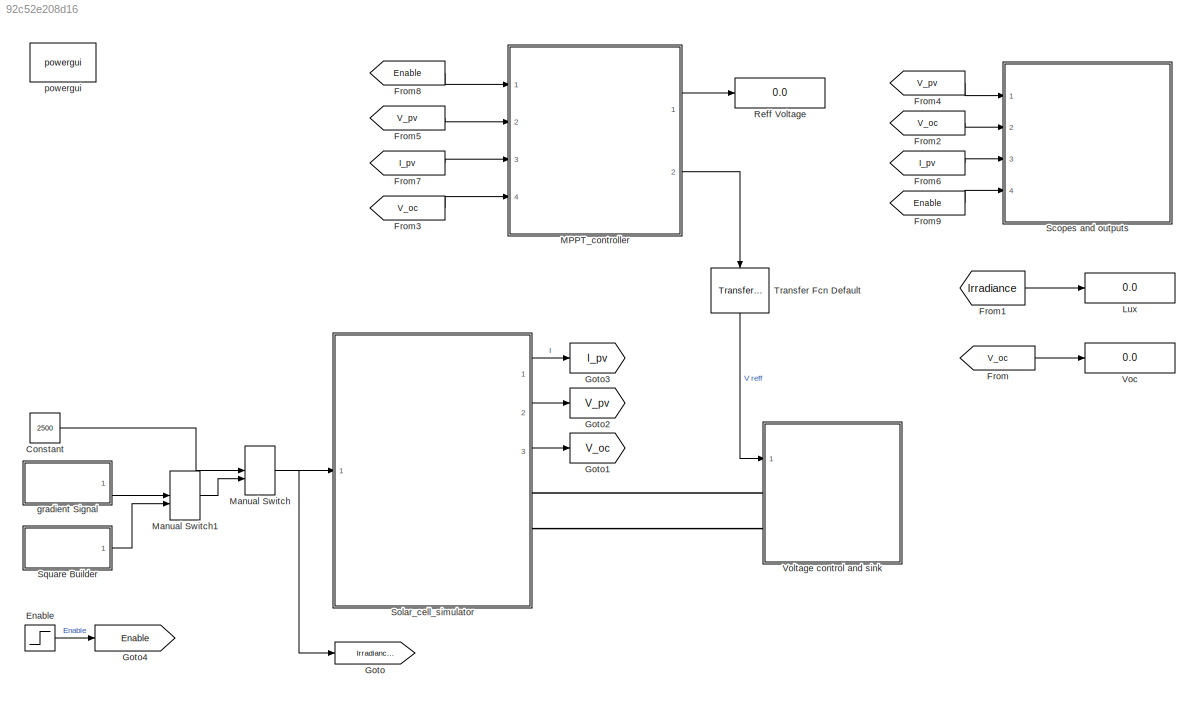
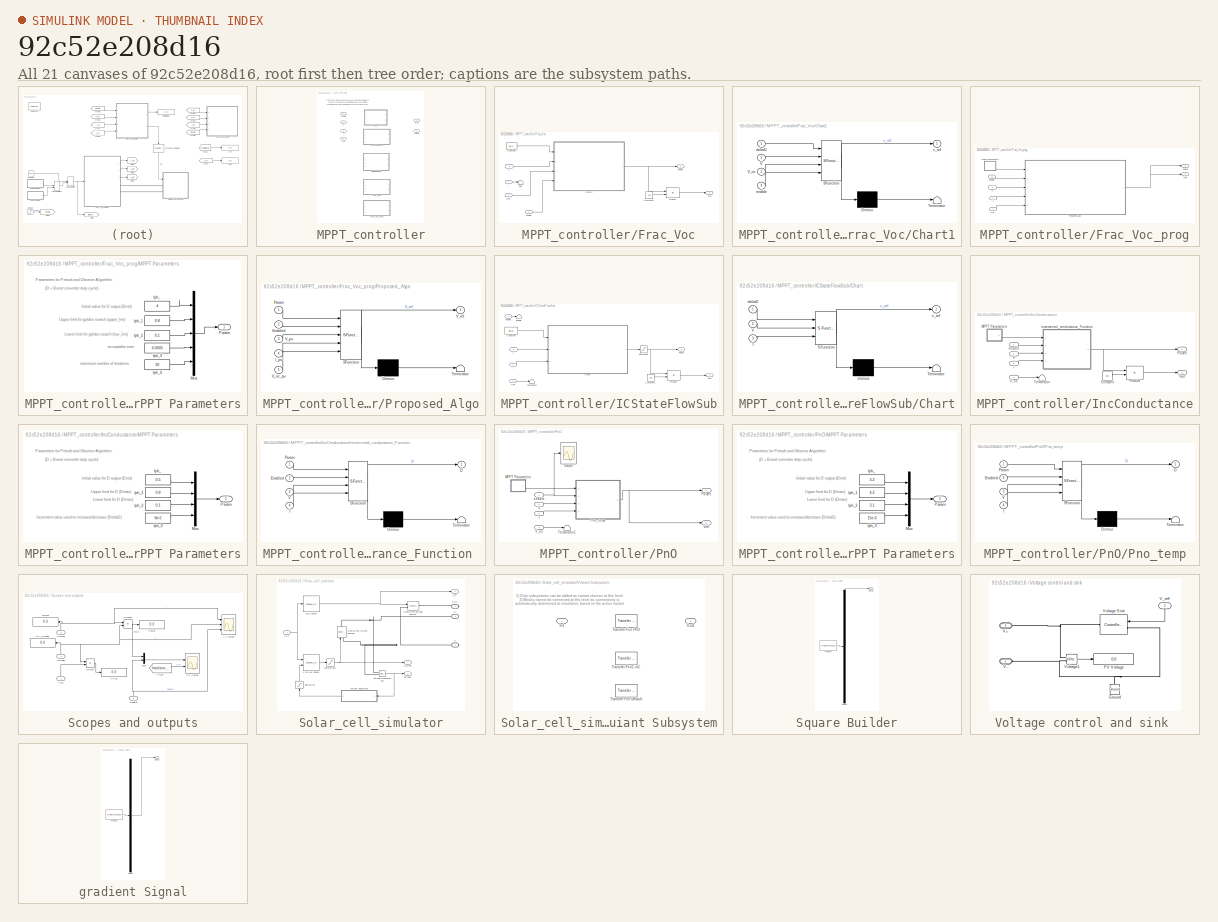
[diagram: thumbnail index - all 21 canvases of the model, root first then tree order]
MODEL slx_92c52e208d16
KIND model
BLOCK [Constant] Constant
  Value = 2500
BLOCK [Step] Enable
  SampleTime = 0
  Time = 0.1
BLOCK [From] From
  GotoTag = V_oc
BLOCK [From] From1
  GotoTag = Irradiance
BLOCK [From] From2
  GotoTag = V_oc
BLOCK [From] From3
  GotoTag = V_oc
BLOCK [From] From4
  GotoTag = V_pv
BLOCK [From] From5
  GotoTag = V_pv
BLOCK [From] From6
  GotoTag = I_pv
BLOCK [From] From7
  GotoTag = I_pv
BLOCK [From] From8
  GotoTag = Enable
BLOCK [From] From9
  GotoTag = Enable
BLOCK [Goto] Goto
  GotoTag = Irradiance_lux
  TagVisibility = global
BLOCK [Goto] Goto1
  GotoTag = V_oc
BLOCK [Goto] Goto2
  GotoTag = V_pv
BLOCK [Goto] Goto3
  GotoTag = I_pv
BLOCK [Goto] Goto4
  GotoTag = Enable
BLOCK [Display] Lux
  Decimation = 1
  Ports = [1]
BLOCK [SubSystem] MPPT_controller
  Ports = [4, 2]
  RequestExecContextInheritance = off
  Variant = on
BLOCK [SubSystem] MPPT_controller/Frac_Voc
  Ports = [4, 2]
  RequestExecContextInheritance = off
  VariantControl = MPPT_Frac_Voc
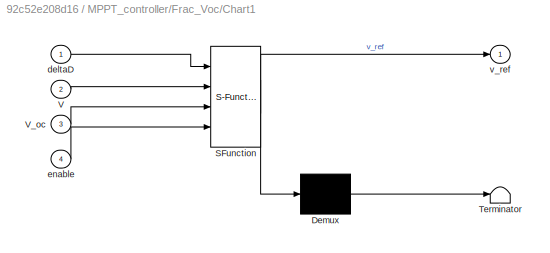
BLOCK [SubSystem] MPPT_controller/Frac_Voc/Chart1
  ErrorFcn = Stateflow.Translate.translate
  PermitHierarchicalResolution = ExplicitOnly
  Ports = [4, 1]
  RequestExecContextInheritance = off
  SFBlockType = Chart
  TreatAsAtomicUnit = on
BLOCK [Demux] MPPT_controller/Frac_Voc/Chart1/ Demux 
  Outputs = 1
  Ports = [1, 1]
BLOCK [S-Function] MPPT_controller/Frac_Voc/Chart1/ SFunction 
  EnableBusSupport = on
  FunctionName = sf_sfun
  PortCounts = [4 2]
  Ports = [4, 2]
  Tag = Stateflow S-Function G24i_v_source 5
BLOCK [Terminator] MPPT_controller/Frac_Voc/Chart1/ Terminator 
BLOCK [Inport] MPPT_controller/Frac_Voc/Chart1/V
  IconDisplay = Port number
  Port = 2
BLOCK [Inport] MPPT_controller/Frac_Voc/Chart1/V_oc
  IconDisplay = Port number
  Port = 3
BLOCK [Inport] MPPT_controller/Frac_Voc/Chart1/deltaD
  IconDisplay = Port number
BLOCK [Inport] MPPT_controller/Frac_Voc/Chart1/enable
  IconDisplay = Port number
  Port = 4
BLOCK [Outport] MPPT_controller/Frac_Voc/Chart1/v_ref
  IconDisplay = Port number
BLOCK [Constant] MPPT_controller/Frac_Voc/Constant
  Value = 8e-4
BLOCK [Constant] MPPT_controller/Frac_Voc/Constant1
  Value = 100
BLOCK [Inport] MPPT_controller/Frac_Voc/I
  IconDisplay = Port number
  Port = 2
BLOCK [Product] MPPT_controller/Frac_Voc/Product
  InputSameDT = off
  OutDataTypeStr = Inherit: Inherit via internal rule
  Ports = [2, 1]
  SaturateOnIntegerOverflow = off
BLOCK [Outport] MPPT_controller/Frac_Voc/Pulses
  IconDisplay = Port number
BLOCK [Inport] MPPT_controller/Frac_Voc/V
  IconDisplay = Port number
  Port = 3
BLOCK [Inport] MPPT_controller/Frac_Voc/V_oc
  IconDisplay = Port number
  Port = 4
BLOCK [Outport] MPPT_controller/Frac_Voc/Vref
  IconDisplay = Port number
  Port = 2
BLOCK [Inport] MPPT_controller/Frac_Voc/enable
  IconDisplay = Port number
BLOCK [Terminator] MPPT_controller/Frac_Voc/sink
BLOCK [SubSystem] MPPT_controller/Frac_Voc_prog
  Ports = [4, 2]
  RequestExecContextInheritance = off
  VariantControl = MPPT_Frac_Voc_prog
BLOCK [Inport] MPPT_controller/Frac_Voc_prog/I
  IconDisplay = Port number
  Port = 2
BLOCK [SubSystem] MPPT_controller/Frac_Voc_prog/MPPT Parameters
  Ports = [0, 1]
  RequestExecContextInheritance = off
BLOCK [Constant] MPPT_controller/Frac_Voc_prog/MPPT Parameters/Iph_
  Value = 4
BLOCK [Constant] MPPT_controller/Frac_Voc_prog/MPPT Parameters/Iph_1
  Value = 0.8
BLOCK [Constant] MPPT_controller/Frac_Voc_prog/MPPT Parameters/Iph_2
  Value = 0.1
BLOCK [Constant] MPPT_controller/Frac_Voc_prog/MPPT Parameters/Iph_3
  Value = 0.0005
BLOCK [Constant] MPPT_controller/Frac_Voc_prog/MPPT Parameters/Iph_4
  Value = 30
BLOCK [Mux] MPPT_controller/Frac_Voc_prog/MPPT Parameters/Mux
  DisplayOption = bar
  Inputs = 5
  Ports = [5, 1]
BLOCK [Outport] MPPT_controller/Frac_Voc_prog/MPPT Parameters/Param
  IconDisplay = Port number
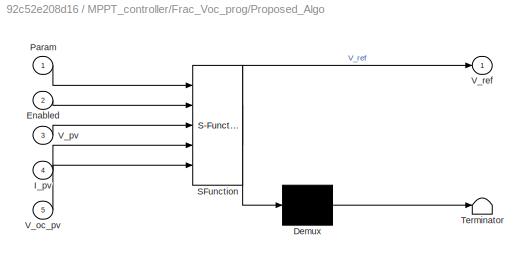
BLOCK [SubSystem] MPPT_controller/Frac_Voc_prog/Proposed_Algo
  ErrorFcn = Stateflow.Translate.translate
  PermitHierarchicalResolution = ExplicitOnly
  Ports = [5, 1]
  RequestExecContextInheritance = off
  SFBlockType = MATLAB Function
  TreatAsAtomicUnit = on
BLOCK [Demux] MPPT_controller/Frac_Voc_prog/Proposed_Algo/ Demux 
  Outputs = 1
  Ports = [1, 1]
BLOCK [S-Function] MPPT_controller/Frac_Voc_prog/Proposed_Algo/ SFunction 
  EnableBusSupport = on
  FunctionName = sf_sfun
  PortCounts = [5 2]
  Ports = [5, 2]
  Tag = Stateflow S-Function G24i_v_source 2
BLOCK [Terminator] MPPT_controller/Frac_Voc_prog/Proposed_Algo/ Terminator 
BLOCK [Inport] MPPT_controller/Frac_Voc_prog/Proposed_Algo/Enabled
  IconDisplay = Port number
  Port = 2
BLOCK [Inport] MPPT_controller/Frac_Voc_prog/Proposed_Algo/I_pv
  IconDisplay = Port number
  Port = 4
BLOCK [Inport] MPPT_controller/Frac_Voc_prog/Proposed_Algo/Param
  IconDisplay = Port number
BLOCK [Inport] MPPT_controller/Frac_Voc_prog/Proposed_Algo/V_oc_pv
  IconDisplay = Port number
  Port = 5
BLOCK [Inport] MPPT_controller/Frac_Voc_prog/Proposed_Algo/V_pv
  IconDisplay = Port number
  Port = 3
BLOCK [Outport] MPPT_controller/Frac_Voc_prog/Proposed_Algo/V_ref
  IconDisplay = Port number
BLOCK [Outport] MPPT_controller/Frac_Voc_prog/Pulses
  IconDisplay = Port number
BLOCK [Inport] MPPT_controller/Frac_Voc_prog/V
  IconDisplay = Port number
  Port = 3
BLOCK [Inport] MPPT_controller/Frac_Voc_prog/V_oc
  IconDisplay = Port number
  Port = 4
BLOCK [Outport] MPPT_controller/Frac_Voc_prog/Vref
  IconDisplay = Port number
  Port = 2
BLOCK [Inport] MPPT_controller/Frac_Voc_prog/enable
  IconDisplay = Port number
BLOCK [Inport] MPPT_controller/I
  IconDisplay = Port number
  Port = 3
BLOCK [SubSystem] MPPT_controller/ICStateFlowSub
  Ports = [4, 2]
  RequestExecContextInheritance = off
  VariantControl = MPPT_IC_SF
BLOCK [SubSystem] MPPT_controller/ICStateFlowSub/Chart
  ErrorFcn = Stateflow.Translate.translate
  PermitHierarchicalResolution = ExplicitOnly
  Ports = [3, 1]
  RequestExecContextInheritance = off
  SFBlockType = Chart
  TreatAsAtomicUnit = on
BLOCK [Demux] MPPT_controller/ICStateFlowSub/Chart/ Demux 
  Outputs = 1
  Ports = [1, 1]
BLOCK [S-Function] MPPT_controller/ICStateFlowSub/Chart/ SFunction 
  EnableBusSupport = on
  FunctionName = sf_sfun
  PortCounts = [3 2]
  Ports = [3, 2]
  Tag = Stateflow S-Function G24i_v_source 3
BLOCK [Terminator] MPPT_controller/ICStateFlowSub/Chart/ Terminator 
BLOCK [Inport] MPPT_controller/ICStateFlowSub/Chart/I
  IconDisplay = Port number
  Port = 3
BLOCK [Inport] MPPT_controller/ICStateFlowSub/Chart/V
  IconDisplay = Port number
  Port = 2
BLOCK [Inport] MPPT_controller/ICStateFlowSub/Chart/deltaD
  IconDisplay = Port number
BLOCK [Outport] MPPT_controller/ICStateFlowSub/Chart/v_ref
  IconDisplay = Port number
BLOCK [Constant] MPPT_controller/ICStateFlowSub/Constant
  Value = 8e-5
BLOCK [Constant] MPPT_controller/ICStateFlowSub/Constant1
  Value = 100
BLOCK [Terminator] MPPT_controller/ICStateFlowSub/Enable 
BLOCK [Inport] MPPT_controller/ICStateFlowSub/I
  IconDisplay = Port number
  Port = 2
BLOCK [Product] MPPT_controller/ICStateFlowSub/Product
  InputSameDT = off
  OutDataTypeStr = Inherit: Inherit via internal rule
  Ports = [2, 1]
  SaturateOnIntegerOverflow = off
BLOCK [Outport] MPPT_controller/ICStateFlowSub/Pulses
  IconDisplay = Port number
BLOCK [Saturate] MPPT_controller/ICStateFlowSub/Saturation
  InputPortMap = u0
  LowerLimit = 0.1
  Ports = [1, 1]
  UpperLimit = .95
BLOCK [Terminator] MPPT_controller/ICStateFlowSub/Terminator
BLOCK [Inport] MPPT_controller/ICStateFlowSub/V
  IconDisplay = Port number
  Port = 3
BLOCK [Inport] MPPT_controller/ICStateFlowSub/V_oc
  IconDisplay = Port number
  Port = 4
BLOCK [Outport] MPPT_controller/ICStateFlowSub/Vref
  IconDisplay = Port number
  Port = 2
BLOCK [Inport] MPPT_controller/ICStateFlowSub/enable
  IconDisplay = Port number
BLOCK [SubSystem] MPPT_controller/IncConductance
  Ports = [4, 2]
  RequestExecContextInheritance = off
  VariantControl = MPPT_IC_logic
BLOCK [Constant] MPPT_controller/IncConductance/Constant
  Value = 100
BLOCK [Inport] MPPT_controller/IncConductance/I
  IconDisplay = Port number
  Port = 3
BLOCK [SubSystem] MPPT_controller/IncConductance/MPPT Parameters
  Ports = [0, 1]
  RequestExecContextInheritance = off
BLOCK [Constant] MPPT_controller/IncConductance/MPPT Parameters/Iph_
  Value = 0.5
BLOCK [Constant] MPPT_controller/IncConductance/MPPT Parameters/Iph_1
  Value = 0.8
BLOCK [Constant] MPPT_controller/IncConductance/MPPT Parameters/Iph_2
  Value = 0.1
BLOCK [Constant] MPPT_controller/IncConductance/MPPT Parameters/Iph_3
  Value = 8e-5
BLOCK [Mux] MPPT_controller/IncConductance/MPPT Parameters/Mux
  DisplayOption = bar
  Ports = [4, 1]
BLOCK [Outport] MPPT_controller/IncConductance/MPPT Parameters/Param
  IconDisplay = Port number
BLOCK [Product] MPPT_controller/IncConductance/Product
  InputSameDT = off
  OutDataTypeStr = Inherit: Inherit via internal rule
  Ports = [2, 1]
  SaturateOnIntegerOverflow = off
BLOCK [Outport] MPPT_controller/IncConductance/Pulses
  IconDisplay = Port number
BLOCK [Terminator] MPPT_controller/IncConductance/Terminator
BLOCK [Inport] MPPT_controller/IncConductance/V
  IconDisplay = Port number
  Port = 2
BLOCK [Inport] MPPT_controller/IncConductance/V_oc
  IconDisplay = Port number
  Port = 4
BLOCK [Outport] MPPT_controller/IncConductance/Vref
  IconDisplay = Port number
  Port = 2
BLOCK [Inport] MPPT_controller/IncConductance/enable
  IconDisplay = Port number
BLOCK [SubSystem] MPPT_controller/IncConductance/incremental_conductance_Function 
  ErrorFcn = Stateflow.Translate.translate
  PermitHierarchicalResolution = ExplicitOnly
  Ports = [4, 1]
  RequestExecContextInheritance = off
  SFBlockType = MATLAB Function
  TreatAsAtomicUnit = on
BLOCK [Demux] MPPT_controller/IncConductance/incremental_conductance_Function / Demux 
  Outputs = 1
  Ports = [1, 1]
BLOCK [S-Function] MPPT_controller/IncConductance/incremental_conductance_Function / SFunction 
  EnableBusSupport = on
  FunctionName = sf_sfun
  PortCounts = [4 2]
  Ports = [4, 2]
  Tag = Stateflow S-Function G24i_v_source 1
BLOCK [Terminator] MPPT_controller/IncConductance/incremental_conductance_Function / Terminator 
BLOCK [Outport] MPPT_controller/IncConductance/incremental_conductance_Function /D
  IconDisplay = Port number
BLOCK [Inport] MPPT_controller/IncConductance/incremental_conductance_Function /Enabled
  IconDisplay = Port number
  Port = 2
BLOCK [Inport] MPPT_controller/IncConductance/incremental_conductance_Function /I
  IconDisplay = Port number
  Port = 4
BLOCK [Inport] MPPT_controller/IncConductance/incremental_conductance_Function /Param
  IconDisplay = Port number
BLOCK [Inport] MPPT_controller/IncConductance/incremental_conductance_Function /V
  IconDisplay = Port number
  Port = 3
BLOCK [SubSystem] MPPT_controller/PnO
  Ports = [4, 2]
  RequestExecContextInheritance = off
  VariantControl = MPPT_PnO
BLOCK [Inport] MPPT_controller/PnO/I
  IconDisplay = Port number
  Port = 3
BLOCK [SubSystem] MPPT_controller/PnO/MPPT Parameters
  Ports = [0, 1]
  RequestExecContextInheritance = off
BLOCK [Constant] MPPT_controller/PnO/MPPT Parameters/Iph_
  Value = 3.2
BLOCK [Constant] MPPT_controller/PnO/MPPT Parameters/Iph_1
  Value = 4.2
BLOCK [Constant] MPPT_controller/PnO/MPPT Parameters/Iph_2
  Value = 3.1
BLOCK [Constant] MPPT_controller/PnO/MPPT Parameters/Iph_3
  Value = 15e-3
BLOCK [Mux] MPPT_controller/PnO/MPPT Parameters/Mux
  DisplayOption = bar
  Ports = [4, 1]
BLOCK [Outport] MPPT_controller/PnO/MPPT Parameters/Param
  IconDisplay = Port number
BLOCK [SubSystem] MPPT_controller/PnO/Pno_temp
  ErrorFcn = Stateflow.Translate.translate
  MinAlgLoopOccurrences = on
  PermitHierarchicalResolution = ExplicitOnly
  Ports = [4, 1]
  RequestExecContextInheritance = off
  SFBlockType = MATLAB Function
  TreatAsAtomicUnit = on
BLOCK [Demux] MPPT_controller/PnO/Pno_temp/ Demux 
  Outputs = 1
  Ports = [1, 1]
BLOCK [S-Function] MPPT_controller/PnO/Pno_temp/ SFunction 
  EnableBusSupport = on
  FunctionName = sf_sfun
  PortCounts = [4 2]
  Ports = [4, 2]
  Tag = Stateflow S-Function G24i_v_source 6
BLOCK [Terminator] MPPT_controller/PnO/Pno_temp/ Terminator 
BLOCK [Outport] MPPT_controller/PnO/Pno_temp/D
  IconDisplay = Port number
BLOCK [Inport] MPPT_controller/PnO/Pno_temp/Enabled
  IconDisplay = Port number
  Port = 2
BLOCK [Inport] MPPT_controller/PnO/Pno_temp/I
  IconDisplay = Port number
  Port = 4
BLOCK [Inport] MPPT_controller/PnO/Pno_temp/Param
  IconDisplay = Port number
BLOCK [Inport] MPPT_controller/PnO/Pno_temp/V
  IconDisplay = Port number
  Port = 3
BLOCK [Outport] MPPT_controller/PnO/Pulses
  IconDisplay = Port number
BLOCK [Scope] MPPT_controller/PnO/Scope
  DataFormat = StructureWithTime
  Floating = off
  LimitDataPoints = off
  NumInputPorts = 1
  Ports = [1]
  SampleTime = 0
  SaveName = ScopeData4
  ShowLegends = off
  TimeRange = 1
  YMax = 0.6
  YMin = -4.16334e-17
  ZoomMode = yonly
BLOCK [Terminator] MPPT_controller/PnO/Terminator1
BLOCK [Inport] MPPT_controller/PnO/V
  IconDisplay = Port number
  Port = 2
BLOCK [Inport] MPPT_controller/PnO/V_oc
  IconDisplay = Port number
  Port = 4
BLOCK [Outport] MPPT_controller/PnO/Vref
  IconDisplay = Port number
  Port = 2
BLOCK [Inport] MPPT_controller/PnO/enable
  IconDisplay = Port number
BLOCK [Outport] MPPT_controller/Pulses
  IconDisplay = Port number
  Port = 2
BLOCK [Inport] MPPT_controller/V
  IconDisplay = Port number
  Port = 2
BLOCK [Inport] MPPT_controller/V_oc
  IconDisplay = Port number
  Port = 4
BLOCK [Outport] MPPT_controller/Vref
  IconDisplay = Port number
BLOCK [Inport] MPPT_controller/enable
  IconDisplay = Port number
BLOCK [ManualSwitch] Manual Switch
  CurrentSetting = 0
BLOCK [ManualSwitch] Manual Switch1
  CurrentSetting = 0
BLOCK [Display] Reff Voltage
  Decimation = 1
  Ports = [1]
BLOCK [SubSystem] Scopes and outputs
  Ports = [4]
  RequestExecContextInheritance = off
BLOCK [Inport] Scopes and outputs/Current
  IconDisplay = Port number
  Port = 3
BLOCK [Product] Scopes and outputs/Divide
  InputSameDT = off
  Inputs = */
  OutDataTypeStr = Inherit: Inherit via internal rule
  Ports = [2, 1]
  RndMeth = Floor
  SaturateOnIntegerOverflow = off
BLOCK [Inport] Scopes and outputs/Enable
  IconDisplay = Port number
  Port = 4
BLOCK [From] Scopes and outputs/From
  GotoTag = Irradiance_lux
  TagVisibility = global
BLOCK [Scope] Scopes and outputs/I-V curves
  DataFormat = StructureWithTime
  Floating = off
  LimitDataPoints = off
  NumInputPorts = 3
  Ports = [3]
  SampleTime = 0
  SaveToWorkspace = on
  ShowLegends = on
  TimeRange = 0.09
  YMax = 0.8~3.5125~1.05
  YMin = 0.45~3.4875~0.95
  ZoomMode = yonly
BLOCK [Mux] Scopes and outputs/Mux
  DisplayOption = bar
  Inputs = 2
  Ports = [2, 1]
BLOCK [Scope] Scopes and outputs/PV Power
  DataFormat = StructureWithTime
  Floating = off
  LimitDataPoints = off
  NumInputPorts = 2
  Ports = [2]
  SampleTime = 0
  SaveName = ScopeData2
  ShowLegends = on
  TimeRange = 0.5
  YMax = 7~2000
  YMin = 0~800
  ZoomMode = xonly
BLOCK [Display] Scopes and outputs/PV_Voltage
  Decimation = 1
  Ports = [1]
BLOCK [Display] Scopes and outputs/Power
  Decimation = 1
  Ports = [1]
BLOCK [Product] Scopes and outputs/Product
  InputSameDT = off
  OutDataTypeStr = Inherit: Inherit via internal rule
  Ports = [2, 1]
  SaturateOnIntegerOverflow = off
BLOCK [Display] Scopes and outputs/V//Voc
  Decimation = 1
  Ports = [1]
BLOCK [Inport] Scopes and outputs/V_oc
  IconDisplay = Port number
  Port = 2
BLOCK [Inport] Scopes and outputs/Voltage
  IconDisplay = Port number
BLOCK [Display] Scopes and outputs/current
  Decimation = 1
  Ports = [1]
BLOCK [SubSystem] Solar_cell_simulator
  Ports = [1, 3, 0, 0, 0, 0, 3]
  RequestExecContextInheritance = off
BLOCK [Lookup_n-D] Solar_cell_simulator/0 -5k Lux lookup
  BreakpointsForDimension1 = Irradiance
  BreakpointsForDimension1Max = [5000]
  BreakpointsForDimension1Min = [0]
  BreakpointsForDimension2 = ArrayVoltage
  BreakpointsForDimension2Max = [6]
  BreakpointsForDimension2Min = [0]
  DiagnosticForOutOfRangeInput = Warning
  Ports = [2, 1]
  RndMeth = Simplest
  Table = ArrayCurrent
BLOCK [Reference] Solar_cell_simulator/Controlled Current Source2  REF=powerlib/Electrical
Sources/Controlled Current Source
  Amplitude = 0
  Frequency = 0
  Initialize = on
  Measurements = None
  Phase = 0
  Ports = [1, 0, 0, 0, 0, 1, 1]
  SourceBlock = powerlib/Electrical\nSources/Controlled Current Source
  SourceType = Controlled Current Source
  Source_Type = DC
BLOCK [Reference] Solar_cell_simulator/Controlled Voltage Source1  REF=powerlib/Electrical
Sources/Controlled Voltage Source
  Amplitude = 0
  Frequency = 0
  Initialize = on
  Measurements = Voltage
  Phase = 0
  Ports = [1, 0, 0, 0, 0, 1, 1]
  SourceBlock = powerlib/Electrical\nSources/Controlled Voltage Source
  SourceType = Controlled Voltage Source
  Source_Type = AC
BLOCK [Outport] Solar_cell_simulator/Current
  IconDisplay = Port number
BLOCK [Inport] Solar_cell_simulator/LUX
  IconDisplay = Port number
BLOCK [Saturate] Solar_cell_simulator/Saturation
  InputPortMap = u0
  LowerLimit = 0
  Ports = [1, 1]
  UpperLimit = 6
  ZeroCross = off
BLOCK [Saturate] Solar_cell_simulator/Saturation1
  InputPortMap = u0
  LowerLimit = -1
  Ports = [1, 1]
  UpperLimit = 6
BLOCK [PMIOPort] Solar_cell_simulator/V+
  Port = 1
  Side = Right
  Tag = PMCPort
BLOCK [PMIOPort] Solar_cell_simulator/V-
  Port = 2
  Side = Right
  Tag = PMCPort
BLOCK [PMIOPort] Solar_cell_simulator/V_OC
  Port = 3
  Side = Right
  Tag = PMCPort
BLOCK [Outport] Solar_cell_simulator/V_oc 
  IconDisplay = Port number
  Port = 3
BLOCK [Lookup_n-D] Solar_cell_simulator/V_oc lookup
  BreakpointsForDimension1 = Irradiance
  NumberOfTableDimensions = 1
  Ports = [1, 1]
  RndMeth = Simplest
  Table = Array_Voc
BLOCK [SubSystem] Solar_cell_simulator/Variant Subsystem
  Ports = [1, 1]
  RequestExecContextInheritance = off
  Variant = on
BLOCK [Inport] Solar_cell_simulator/Variant Subsystem/In1
  IconDisplay = Port number
BLOCK [Outport] Solar_cell_simulator/Variant Subsystem/Out1
  IconDisplay = Port number
BLOCK [Reference] Solar_cell_simulator/Variant Subsystem/Transfer Fcn Default  REF=simulink_extras/Additional
Linear/Transfer Fcn
(with initial states)
  D = [.001  1]
  N = [1]
  Ports = [1, 1]
  SourceBlock = simulink_extras/Additional\nLinear/Transfer Fcn\n(with initial states)
  SourceType = Transfer Function with Initial States
  VariantControl = (default)
  X0 = 0
BLOCK [Reference] Solar_cell_simulator/Variant Subsystem/Transfer Fcn PnO  REF=simulink_extras/Additional
Linear/Transfer Fcn
(with initial states)
  D = [.0001  1]
  N = [1]
  Ports = [1, 1]
  SourceBlock = simulink_extras/Additional\nLinear/Transfer Fcn\n(with initial states)
  SourceType = Transfer Function with Initial States
  VariantControl = MPPT_PnO
  X0 = 0
BLOCK [Reference] Solar_cell_simulator/Variant Subsystem/Transfer Fcn1 inC  REF=simulink_extras/Additional
Linear/Transfer Fcn
(with initial states)
  D = [.001  1]
  N = [1]
  Ports = [1, 1]
  SourceBlock = simulink_extras/Additional\nLinear/Transfer Fcn\n(with initial states)
  SourceType = Transfer Function with Initial States
  VariantControl = MPPT_IC_logic
  X0 = 0
BLOCK [Outport] Solar_cell_simulator/Voltage
  IconDisplay = Port number
  Port = 2
BLOCK [Reference] Solar_cell_simulator/Voltage Measurement  REF=powerlib/Measurements/Voltage Measurement
  OutputType = Complex
  PSBequivalent = 0
  PhasorSimulation = off
  Ports = [0, 1, 0, 0, 0, 2]
  SourceBlock = powerlib/Measurements/Voltage Measurement
  SourceType = Voltage Measurement
BLOCK [SubSystem] Square Builder
  ClipboardFcn = sigbuilder_block('clipboard');
  CloseFcn = sigbuilder_block('close');
  ContinueFcn = sigbuilder_block('continue');
  CopyFcn = sigbuilder_block('copy');
  DeleteFcn = sigbuilder_block('delete');
  LoadFcn = sigbuilder_block('load');
  MaskHideContents = on
  ModelCloseFcn = sigbuilder_block('modelClose');
  NameChangeFcn = sigbuilder_block('namechange');
  OpenFcn = sigbuilder_block('open',[0 29.7931 1588.97 810.621 ]);
  PauseFcn = sigbuilder_block('pause');
  Ports = [0, 1]
  PreSaveFcn = sigbuilder_block('preSave');
  RequestExecContextInheritance = off
  StartFcn = sigbuilder_block('start');
  StopFcn = sigbuilder_block('stop');
  Tag = STV Subsys
BLOCK [Demux] Square Builder/Demux
  Outputs = 1
  Ports = [1, 1]
  Tag = STV Demux
BLOCK [FromWorkspace] Square Builder/FromWs
  SampleTime = 0
  Tag = STV FromWs
  VariableName = tuvar
  ZeroCross = on
BLOCK [Outport] Square Builder/Signal 1
  IconDisplay = Port number
  Tag = STV Outport
BLOCK [Reference] Transfer Fcn Default  REF=simulink_extras/Additional
Linear/Transfer Fcn
(with initial states)
  D = [.00001  1]
  N = [1]
  Ports = [1, 1]
  SourceBlock = simulink_extras/Additional\nLinear/Transfer Fcn\n(with initial states)
  SourceType = Transfer Function with Initial States
  VariantControl = (default)
  X0 = 0
BLOCK [Display] Voc
  Decimation = 1
  Ports = [1]
BLOCK [SubSystem] Voltage control and sink 
  Ports = [1, 0, 0, 0, 0, 2]
  RequestExecContextInheritance = off
BLOCK [Reference] Voltage control and sink /Ground  REF=powerlib/Elements/Ground
  LConnTagsString = a
  Ports = [0, 0, 0, 0, 0, 1]
  SourceBlock = powerlib/Elements/Ground
  SourceType = Ground
BLOCK [Display] Voltage control and sink /PV Voltage
  Decimation = 1
  Ports = [1]
BLOCK [PMIOPort] Voltage control and sink /V+
  Port = 1
  Side = Left
BLOCK [PMIOPort] Voltage control and sink /V-
  Port = 2
  Side = Left
BLOCK [Inport] Voltage control and sink /V_reff
  IconDisplay = Port number
BLOCK [Reference] Voltage control and sink /Voltage Sink  REF=powerlib/Electrical
Sources/Controlled Voltage Source
  Amplitude = 0
  Frequency = 0
  Initialize = on
  Measurements = Voltage
  Phase = 0
  Ports = [1, 0, 0, 0, 0, 1, 1]
  SourceBlock = powerlib/Electrical\nSources/Controlled Voltage Source
  SourceType = Controlled Voltage Source
  Source_Type = AC
BLOCK [Reference] Voltage control and sink /Voltage1  REF=powerlib/Measurements/Voltage Measurement
  OutputType = Complex
  PSBequivalent = 0
  PhasorSimulation = off
  Ports = [0, 1, 0, 0, 0, 2]
  SourceBlock = powerlib/Measurements/Voltage Measurement
  SourceType = Voltage Measurement
BLOCK [SubSystem] gradient Signal
  ClipboardFcn = sigbuilder_block('clipboard');
  CloseFcn = sigbuilder_block('close');
  ContinueFcn = sigbuilder_block('continue');
  CopyFcn = sigbuilder_block('copy');
  DeleteFcn = sigbuilder_block('delete');
  LoadFcn = sigbuilder_block('load');
  MaskHideContents = on
  ModelCloseFcn = sigbuilder_block('modelClose');
  NameChangeFcn = sigbuilder_block('namechange');
  OpenFcn = sigbuilder_block('open',[1588.97 178.759 1271.17 661.655 ]);
  PauseFcn = sigbuilder_block('pause');
  Ports = [0, 1]
  PreSaveFcn = sigbuilder_block('preSave');
  RequestExecContextInheritance = off
  StartFcn = sigbuilder_block('start');
  StopFcn = sigbuilder_block('stop');
  Tag = STV Subsys
BLOCK [Demux] gradient Signal/Demux
  Outputs = 1
  Ports = [1, 1]
  Tag = STV Demux
BLOCK [FromWorkspace] gradient Signal/FromWs
  SampleTime = 0
  Tag = STV FromWs
  VariableName = tuvar
  ZeroCross = on
BLOCK [Outport] gradient Signal/Signal 1
  IconDisplay = Port number
  Tag = STV Outport
BLOCK [Reference] powergui  REF=powerlib/powergui
  DisableRonSwitches = off
  DisableSnubberDevices = off
  DisableVfSwitches = off
  DisplayEquations = off
  DisplayStyle = 1
  EnableUseOfTLC = off
  ErrMax = 1e-4
  Frange = [0:2:500]
  FreqAxis = off
  FunctionMessages = off
  HookPort = off
  Interpol = off
  Iterations = 50
  MaxFrequency = 1000
  Pbase = 100e6
  Ports = []
  Priority = 1
  ResistiveCurrentMeasurement = off
  RestoreLinks = warning
  RmsSteady = 1
  SPID = off
  SampleTime = 50e-6
  ShowGrid = off
  SolverType = Tustin
  SourceBlock = powerlib/powergui
  SourceType = PSB option menu block
  StartTime = 0.0
  SwTol = 0
  Ts = 0
  UnitsV = kV
  UnitsW = MW
  UserDataPersistent = on
  Xlog = on
  Ylog = off
  ZoomFFT = off
  cycles = 1
  display = off
  echomessages = off
  frequency = 50
  frequencyindice = 0
  frequencyindicesteady = 1
  fundamental = 60
  methode = off
  save = off
  structure = 0
  variable = ZData
  x0status = blocks
ANNOTATION MPPT_controller: 1) Only subsystems can be added as variant choices at this level 2) Blocks cannot be connected at this level as connectivity is automatically determined at simulation, based on the active variant
ANNOTATION MPPT_controller/Frac_Voc_prog/MPPT Parameters: (D = Boost converter duty cycle)
ANNOTATION MPPT_controller/Frac_Voc_prog/MPPT Parameters: acceptable error
ANNOTATION MPPT_controller/Frac_Voc_prog/MPPT Parameters: maximum number of iterations
ANNOTATION MPPT_controller/Frac_Voc_prog/MPPT Parameters: Initial value for D output (Dinit)
ANNOTATION MPPT_controller/Frac_Voc_prog/MPPT Parameters: Lower limit for golden search (low_lim)
ANNOTATION MPPT_controller/Frac_Voc_prog/MPPT Parameters: Parameters for Perturb and Observe Algorithm:
ANNOTATION MPPT_controller/Frac_Voc_prog/MPPT Parameters: Upper limit for golden search (upper_lim)
ANNOTATION MPPT_controller/IncConductance/MPPT Parameters: (D = Boost converter duty cycle)
ANNOTATION MPPT_controller/IncConductance/MPPT Parameters: Increment value used to increase/decrease (DeltaD)
ANNOTATION MPPT_controller/IncConductance/MPPT Parameters: Initial value for D output (Dinit)
ANNOTATION MPPT_controller/IncConductance/MPPT Parameters: Lower limit for D (Dmax)
ANNOTATION MPPT_controller/IncConductance/MPPT Parameters: Parameters for Perturb and Observe Algorithm:
ANNOTATION MPPT_controller/IncConductance/MPPT Parameters: Upper limit for D (Dmax)
ANNOTATION MPPT_controller/PnO/MPPT Parameters: (D = Boost converter duty cycle)
ANNOTATION MPPT_controller/PnO/MPPT Parameters: Increment value used to increase/decrease (DeltaD)
ANNOTATION MPPT_controller/PnO/MPPT Parameters: Initial value for D output (Dinit)
ANNOTATION MPPT_controller/PnO/MPPT Parameters: Lower limit for D (Dmax)
ANNOTATION MPPT_controller/PnO/MPPT Parameters: Parameters for Perturb and Observe Algorithm:
ANNOTATION MPPT_controller/PnO/MPPT Parameters: Upper limit for D (Dmax)
ANNOTATION Solar_cell_simulator/Variant Subsystem: 1) Only subsystems can be added as variant choices at this level 2) Blocks cannot be connected at this level as connectivity is automatically determined at simulation, based on the active variant
LINE Constant:1 -> Manual Switch:1
LINE Enable:1 -> Goto4:1
LINE From1:1 -> Lux:1
LINE From2:1 -> Scopes and outputs:2
LINE From3:1 -> MPPT_controller:4
LINE From4:1 -> Scopes and outputs:1
LINE From5:1 -> MPPT_controller:2
LINE From6:1 -> Scopes and outputs:3
LINE From7:1 -> MPPT_controller:3
LINE From8:1 -> MPPT_controller:1
LINE From9:1 -> Scopes and outputs:4
LINE From:1 -> Voc:1
NET MPPT_controller/Frac_Voc/Chart1:1 -> MPPT_controller/Frac_Voc/Product:1, MPPT_controller/Frac_Voc/Pulses:1
LINE MPPT_controller/Frac_Voc/Constant1:1 -> MPPT_controller/Frac_Voc/Product:2
LINE MPPT_controller/Frac_Voc/Constant:1 -> MPPT_controller/Frac_Voc/Chart1:1
LINE MPPT_controller/Frac_Voc/I:1 -> MPPT_controller/Frac_Voc/sink:1
LINE MPPT_controller/Frac_Voc/Product:1 -> MPPT_controller/Frac_Voc/Vref:1
LINE MPPT_controller/Frac_Voc/V:1 -> MPPT_controller/Frac_Voc/Chart1:2
LINE MPPT_controller/Frac_Voc/V_oc:1 -> MPPT_controller/Frac_Voc/Chart1:3
LINE MPPT_controller/Frac_Voc/enable:1 -> MPPT_controller/Frac_Voc/Chart1:4
LINE MPPT_controller/Frac_Voc_prog/I:1 -> MPPT_controller/Frac_Voc_prog/Proposed_Algo:4
LINE MPPT_controller/Frac_Voc_prog/MPPT Parameters/Iph_1:1 -> MPPT_controller/Frac_Voc_prog/MPPT Parameters/Mux:2
LINE MPPT_controller/Frac_Voc_prog/MPPT Parameters/Iph_2:1 -> MPPT_controller/Frac_Voc_prog/MPPT Parameters/Mux:3
LINE MPPT_controller/Frac_Voc_prog/MPPT Parameters/Iph_3:1 -> MPPT_controller/Frac_Voc_prog/MPPT Parameters/Mux:4
LINE MPPT_controller/Frac_Voc_prog/MPPT Parameters/Iph_4:1 -> MPPT_controller/Frac_Voc_prog/MPPT Parameters/Mux:5
LINE MPPT_controller/Frac_Voc_prog/MPPT Parameters/Iph_:1 -> MPPT_controller/Frac_Voc_prog/MPPT Parameters/Mux:1
LINE MPPT_controller/Frac_Voc_prog/MPPT Parameters/Mux:1 -> MPPT_controller/Frac_Voc_prog/MPPT Parameters/Param:1
LINE MPPT_controller/Frac_Voc_prog/MPPT Parameters:1 -> MPPT_controller/Frac_Voc_prog/Proposed_Algo:1
NET MPPT_controller/Frac_Voc_prog/Proposed_Algo:1 -> MPPT_controller/Frac_Voc_prog/Pulses:1, MPPT_controller/Frac_Voc_prog/Vref:1
LINE MPPT_controller/Frac_Voc_prog/V:1 -> MPPT_controller/Frac_Voc_prog/Proposed_Algo:3
LINE MPPT_controller/Frac_Voc_prog/V_oc:1 -> MPPT_controller/Frac_Voc_prog/Proposed_Algo:5
LINE MPPT_controller/Frac_Voc_prog/enable:1 -> MPPT_controller/Frac_Voc_prog/Proposed_Algo:2
LINE MPPT_controller/ICStateFlowSub/Chart:1 -> MPPT_controller/ICStateFlowSub/Saturation:1
LINE MPPT_controller/ICStateFlowSub/Constant1:1 -> MPPT_controller/ICStateFlowSub/Product:2
LINE MPPT_controller/ICStateFlowSub/Constant:1 -> MPPT_controller/ICStateFlowSub/Chart:1
LINE MPPT_controller/ICStateFlowSub/I:1 -> MPPT_controller/ICStateFlowSub/Chart:3
LINE MPPT_controller/ICStateFlowSub/Product:1 -> MPPT_controller/ICStateFlowSub/Vref:1
NET MPPT_controller/ICStateFlowSub/Saturation:1 -> MPPT_controller/ICStateFlowSub/Product:1, MPPT_controller/ICStateFlowSub/Pulses:1
LINE MPPT_controller/ICStateFlowSub/V:1 -> MPPT_controller/ICStateFlowSub/Chart:2
LINE MPPT_controller/ICStateFlowSub/V_oc:1 -> MPPT_controller/ICStateFlowSub/Terminator:1
LINE MPPT_controller/ICStateFlowSub/enable:1 -> MPPT_controller/ICStateFlowSub/Enable :1
LINE MPPT_controller/IncConductance/Constant:1 -> MPPT_controller/IncConductance/Product:2
LINE MPPT_controller/IncConductance/I:1 -> MPPT_controller/IncConductance/incremental_conductance_Function :4
LINE MPPT_controller/IncConductance/MPPT Parameters/Iph_1:1 -> MPPT_controller/IncConductance/MPPT Parameters/Mux:2
LINE MPPT_controller/IncConductance/MPPT Parameters/Iph_2:1 -> MPPT_controller/IncConductance/MPPT Parameters/Mux:3
LINE MPPT_controller/IncConductance/MPPT Parameters/Iph_3:1 -> MPPT_controller/IncConductance/MPPT Parameters/Mux:4
LINE MPPT_controller/IncConductance/MPPT Parameters/Iph_:1 -> MPPT_controller/IncConductance/MPPT Parameters/Mux:1
LINE MPPT_controller/IncConductance/MPPT Parameters/Mux:1 -> MPPT_controller/IncConductance/MPPT Parameters/Param:1
LINE MPPT_controller/IncConductance/MPPT Parameters:1 -> MPPT_controller/IncConductance/incremental_conductance_Function :1
LINE MPPT_controller/IncConductance/Product:1 -> MPPT_controller/IncConductance/Vref:1
LINE MPPT_controller/IncConductance/V:1 -> MPPT_controller/IncConductance/incremental_conductance_Function :3
LINE MPPT_controller/IncConductance/V_oc:1 -> MPPT_controller/IncConductance/Terminator:1
LINE MPPT_controller/IncConductance/enable:1 -> MPPT_controller/IncConductance/incremental_conductance_Function :2
NET MPPT_controller/IncConductance/incremental_conductance_Function :1 -> MPPT_controller/IncConductance/Product:1, MPPT_controller/IncConductance/Pulses:1
LINE MPPT_controller/PnO/I:1 -> MPPT_controller/PnO/Pno_temp:4
LINE MPPT_controller/PnO/MPPT Parameters/Iph_1:1 -> MPPT_controller/PnO/MPPT Parameters/Mux:2
LINE MPPT_controller/PnO/MPPT Parameters/Iph_2:1 -> MPPT_controller/PnO/MPPT Parameters/Mux:3
LINE MPPT_controller/PnO/MPPT Parameters/Iph_3:1 -> MPPT_controller/PnO/MPPT Parameters/Mux:4
LINE MPPT_controller/PnO/MPPT Parameters/Iph_:1 -> MPPT_controller/PnO/MPPT Parameters/Mux:1
LINE MPPT_controller/PnO/MPPT Parameters/Mux:1 -> MPPT_controller/PnO/MPPT Parameters/Param:1
LINE MPPT_controller/PnO/MPPT Parameters:1 -> MPPT_controller/PnO/Pno_temp:1
NET MPPT_controller/PnO/Pno_temp:1 -> MPPT_controller/PnO/Pulses:1, MPPT_controller/PnO/Vref:1
LINE MPPT_controller/PnO/V:1 -> MPPT_controller/PnO/Pno_temp:3
LINE MPPT_controller/PnO/V_oc:1 -> MPPT_controller/PnO/Terminator1:1
NET MPPT_controller/PnO/enable:1 -> MPPT_controller/PnO/Pno_temp:2, MPPT_controller/PnO/Scope:1
LINE MPPT_controller:1 -> Reff Voltage:1
LINE MPPT_controller:2 -> Transfer Fcn Default:1
LINE Manual Switch1:1 -> Manual Switch:2
NET Manual Switch:1 -> Goto:1, Solar_cell_simulator:1
NET Scopes and outputs/Current:1 -> Scopes and outputs/I-V curves:1, Scopes and outputs/Product:1, Scopes and outputs/current:1
LINE Scopes and outputs/Divide:1 -> Scopes and outputs/V//Voc:1
NET Scopes and outputs/Enable:1 -> Scopes and outputs/I-V curves:3, Scopes and outputs/Mux:2
LINE Scopes and outputs/From:1 -> Scopes and outputs/PV Power:2
LINE Scopes and outputs/Mux:1 -> Scopes and outputs/PV Power:1
NET Scopes and outputs/Product:1 -> Scopes and outputs/Mux:1, Scopes and outputs/Power:1
LINE Scopes and outputs/V_oc:1 -> Scopes and outputs/Divide:2
NET Scopes and outputs/Voltage:1 -> Scopes and outputs/Divide:1, Scopes and outputs/I-V curves:2, Scopes and outputs/PV_Voltage:1, Scopes and outputs/Product:2
LINE Solar_cell_simulator/0 -5k Lux lookup:1 -> Solar_cell_simulator/Saturation1:1
NET Solar_cell_simulator/LUX:1 -> Solar_cell_simulator/0 -5k Lux lookup:1, Solar_cell_simulator/V_oc lookup:1
NET Solar_cell_simulator/Saturation1:1 -> Solar_cell_simulator/Controlled Current Source2:1, Solar_cell_simulator/Current:1
LINE Solar_cell_simulator/Saturation:1 -> Solar_cell_simulator/0 -5k Lux lookup:2
NET Solar_cell_simulator/V_oc lookup:1 -> Solar_cell_simulator/Controlled Voltage Source1:1, Solar_cell_simulator/V_oc :1
LINE Solar_cell_simulator/Variant Subsystem:1 -> Solar_cell_simulator/Saturation:1
NET Solar_cell_simulator/Voltage Measurement:1 -> Solar_cell_simulator/Variant Subsystem:1, Solar_cell_simulator/Voltage:1
LINE Solar_cell_simulator:1 -> Goto3:1
LINE Solar_cell_simulator:2 -> Goto2:1
LINE Solar_cell_simulator:3 -> Goto1:1
LINE Square Builder:1 -> Manual Switch1:2
LINE Transfer Fcn Default:1 -> Voltage control and sink :1
LINE Voltage control and sink /V_reff:1 -> Voltage control and sink /Voltage Sink:1
LINE Voltage control and sink /Voltage1:1 -> Voltage control and sink /PV Voltage:1
LINE gradient Signal:1 -> Manual Switch1:1
PNET net1: Solar_cell_simulator/Controlled Current Source2:LConn1 -- Solar_cell_simulator/Controlled Voltage Source1:LConn1 -- Solar_cell_simulator/V-:RConn1 -- Solar_cell_simulator/Voltage Measurement:LConn2
PNET net2: Solar_cell_simulator/Controlled Current Source2:RConn1 -- Solar_cell_simulator/V+:RConn1 -- Solar_cell_simulator/Voltage Measurement:LConn1
PLINE Solar_cell_simulator/Controlled Voltage Source1:RConn1 -- Solar_cell_simulator/V_OC:RConn1
PLINE Solar_cell_simulator:RConn1 -- Voltage control and sink :LConn1
PLINE Solar_cell_simulator:RConn2 -- Voltage control and sink :LConn2
PNET net3: Voltage control and sink /Ground:LConn1 -- Voltage control and sink /V-:RConn1 -- Voltage control and sink /Voltage Sink:LConn1 -- Voltage control and sink /Voltage1:LConn2
PNET net4: Voltage control and sink /V+:RConn1 -- Voltage control and sink /Voltage Sink:RConn1 -- Voltage control and sink /Voltage1:LConn1
note: NET lines group one-source signal fan-out (src -> all destinations, sorted); 1:1 wires keep LINE; PNET lines group multi-terminal physical nets as a canonical sorted terminal list (undirected conserving connections); 2-terminal nets keep the pairwise PLINE form
